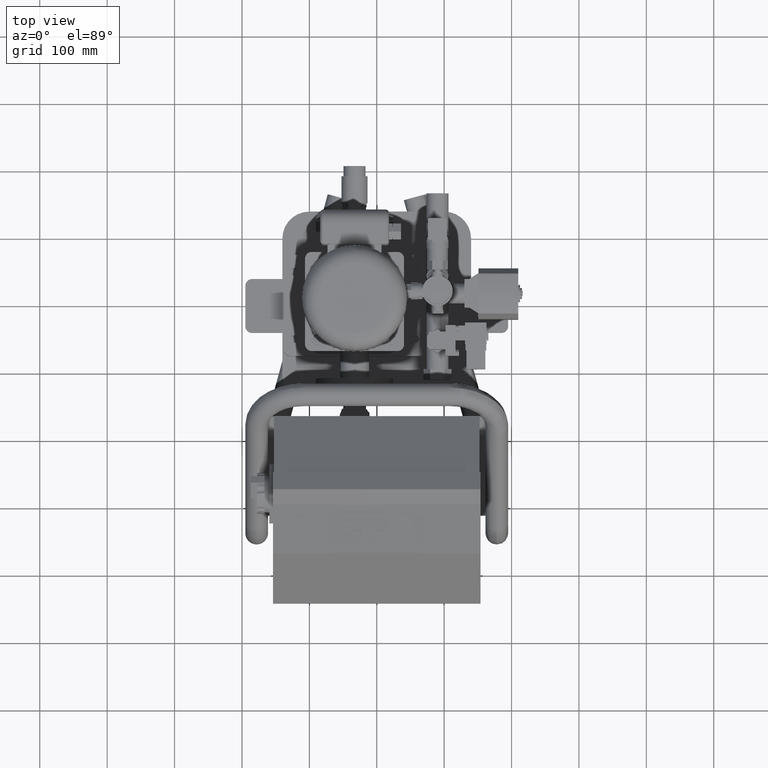
[diagram: clean part render]
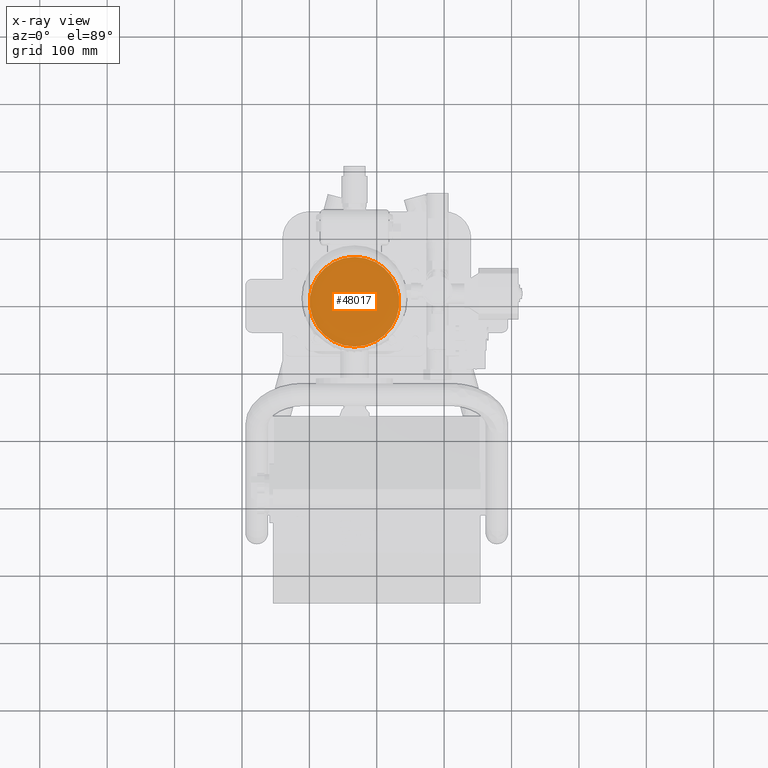
[diagram: x-ray — body ghosted, one internal face saturated and labeled with its STEP entity id]
A machine part, top view, then the same camera in x-ray: the body is ghosted and one INTERNAL B-rep face — a face not visible from any outside direction — is saturated and labeled: STEP entity #48017.
In plain terms, the highlighted planar face has unit normal (0, 0, -1).
Its self-contained STEP definition (entity closure, byte-faithful):
#47965=CARTESIAN_POINT('',(-32.999999999999986,66.499999999999957,393.0));
#47966=VERTEX_POINT('',#47965);
#47975=CARTESIAN_POINT('',(-33.0,-66.500000000000057,393.0));
#47976=VERTEX_POINT('',#47975);
#47977=CARTESIAN_POINT('',(-33.0,-5.114924E-014,393.0));
#47978=DIRECTION('',(0.0,0.0,-1.0));
#47979=DIRECTION('',(0.0,1.0,0.0));
#47980=AXIS2_PLACEMENT_3D('',#47977,#47978,#47979);
#47981=CIRCLE('',#47980,66.500000000000000);
#47982=EDGE_CURVE('',#47966,#47976,#47981,.T.);
#48002=CARTESIAN_POINT('',(-33.0,-26.424738792969524,393.0));
#48003=DIRECTION('',(0.0,0.0,-1.0));
#48004=DIRECTION('',(1.0,0.0,0.0));
#48005=AXIS2_PLACEMENT_3D('',#48002,#48003,#48004);
#48006=PLANE('',#48005);
#48007=CARTESIAN_POINT('',(-33.0,-5.114924E-014,393.0));
#48008=DIRECTION('',(0.0,0.0,-1.0));
#48009=DIRECTION('',(0.0,1.0,0.0));
#48010=AXIS2_PLACEMENT_3D('',#48007,#48008,#48009);
#48011=CIRCLE('',#48010,66.500000000000000);
#48012=EDGE_CURVE('',#47976,#47966,#48011,.T.);
#48013=ORIENTED_EDGE('',*,*,#48012,.F.);
#48014=ORIENTED_EDGE('',*,*,#47982,.F.);
#48015=EDGE_LOOP('',(#48013,#48014));
#48016=FACE_OUTER_BOUND('',#48015,.T.);
#48017=ADVANCED_FACE('',(#48016),#48006,.F.);